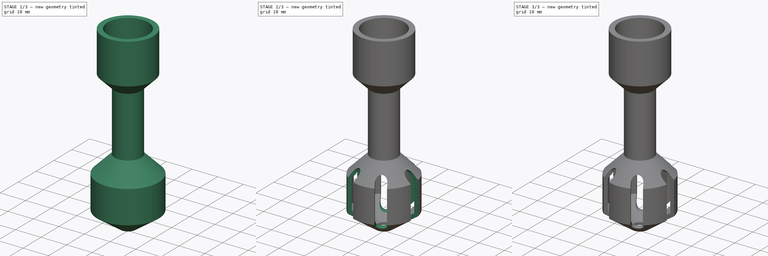
[diagram: build sequence overview — one tinted view per stage of 3, left to right]
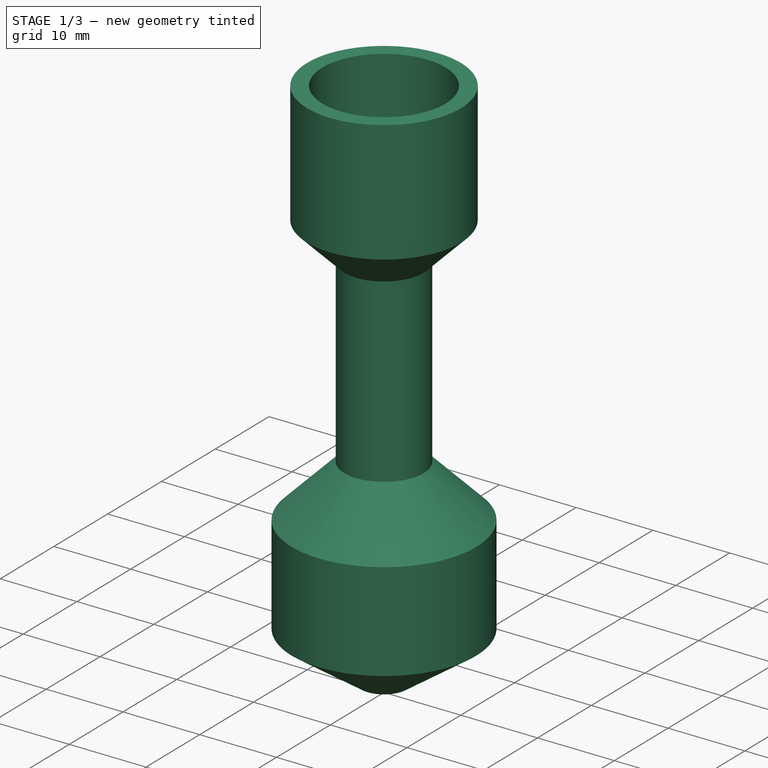
[diagram: stage 1 of 3 — iso view after this stage's code; geometry added in this stage tinted green]
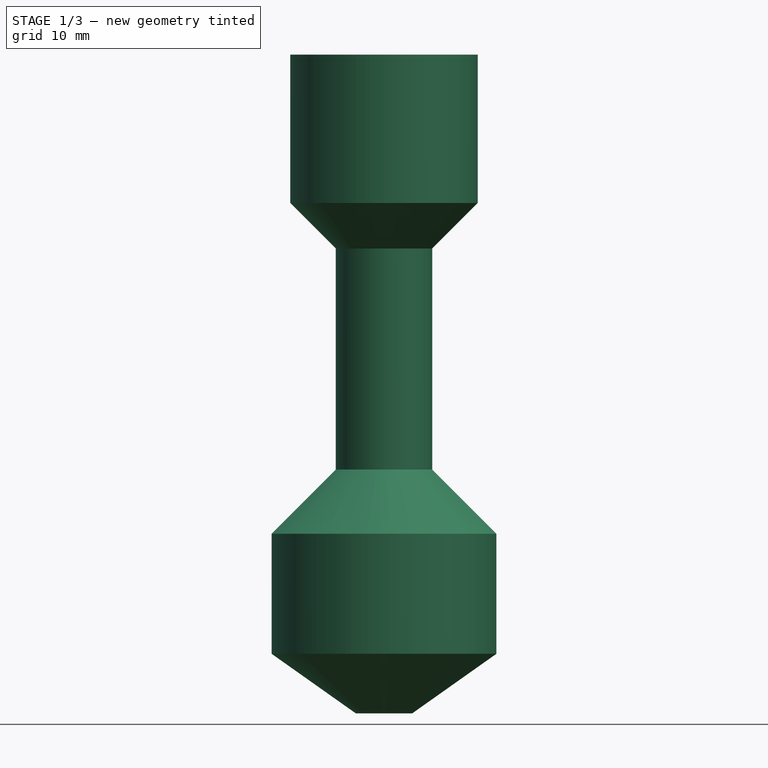
[diagram: stage 1 of 3 — front view after this stage's code; geometry added in this stage tinted green]
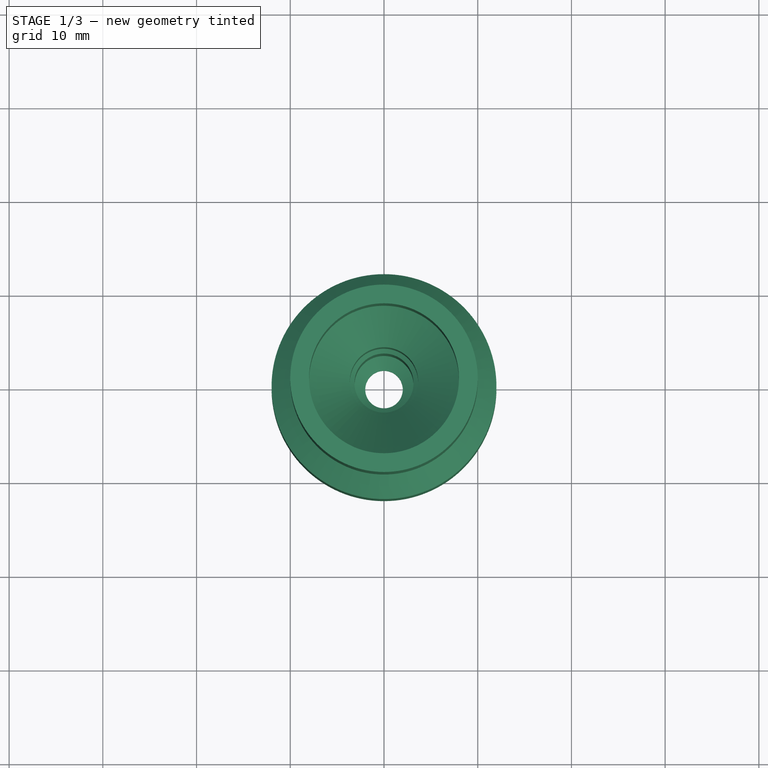
[diagram: stage 1 of 3 — top view after this stage's code; geometry added in this stage tinted green]
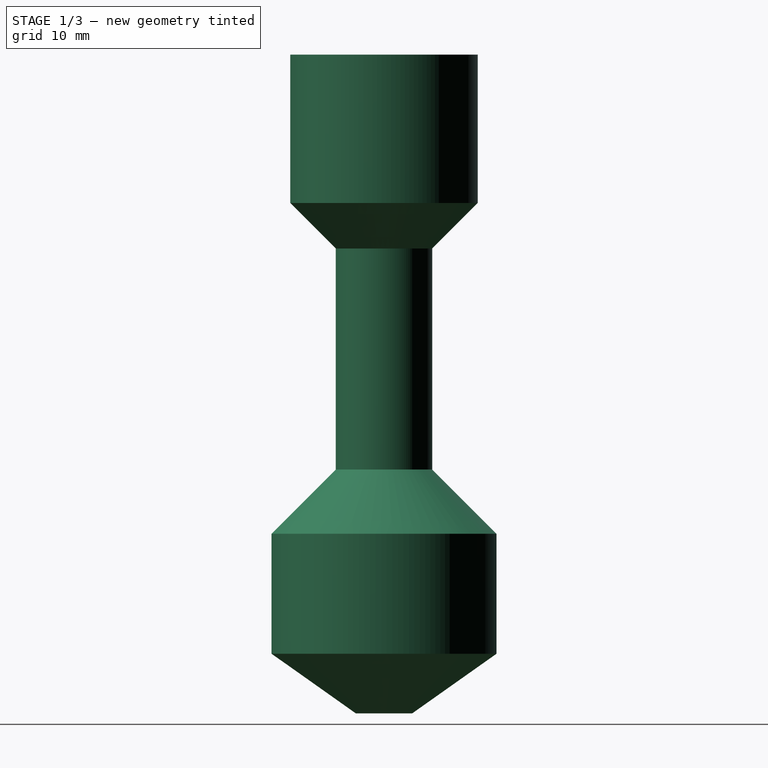
[diagram: stage 1 of 3 — right view after this stage's code; geometry added in this stage tinted green]
FCSTD DOCUMENT  (FreeCAD 1.1R44874 (Git))
Label: EN16_DS18N20_adapter
License: All rights reserved
LicenseURL: https://en.wikipedia.org/wiki/All_rights_reserved
objects: Sketcher::SketchObject×4, PartDesign::Revolution×2, PartDesign::Pocket×2, PartDesign::PolarPattern×2, App::Point×1, PartDesign::Body×1
note: 25 computed .brp shape members not serialized (recipe doc carries the construction recipe); baked Part::Feature solids carry a one-line shape summary decoded from their .brp

FEATURE [App::Point] Origin001
  Role = Origin
FEATURE [Sketcher::SketchObject] Sketch
  ArcFitTolerance = 1e-06
  AttachmentSupport = -> [Origin]
  ExternalTypes = [0]
  FullyConstrained = true
  MakeInternals = false
  MapMode = 5
  Placement = pos=(0,0,0) rot=(0.57735,0.57735,0.57735;2.0944rad)
  _ExternalGeoVersion = 1
  expr: Constraints[14] = 16 / 2
  expr: Constraints[16] = 7 / 2 + 0.15
  expr: Constraints[17] = 6 / 2 + 0.15
  expr: Constraints[18] = 90 + 45
  expr: Constraints[19] = 90 + 45
  expr: Constraints[41] = 6.5 / 2
  expr: Constraints[45] = 6 / 2
  sketch-geometry (16):
    g0: LineSegment StartX=8 StartY=29.2642 StartZ=0 EndX=8 EndY=44.2642 EndZ=0
    g1: LineSegment StartX=8 StartY=44.2642 StartZ=0 EndX=10 EndY=44.2642 EndZ=0
    g2: LineSegment StartX=10 StartY=44.2642 StartZ=0 EndX=10 EndY=28.4358 EndZ=0
    g3: LineSegment StartX=5.15 StartY=0 StartZ=0 EndX=3.15 EndY=0 EndZ=0
    g4: LineSegment StartX=3.15 StartY=0 StartZ=0 EndX=3.15 EndY=14.9 EndZ=0
    g5: LineSegment StartX=3.15 StartY=14.9 StartZ=0 EndX=3.65 EndY=15.4 EndZ=0
    g6: LineSegment StartX=3.65 StartY=15.4 StartZ=0 EndX=3.65 EndY=24.9142 EndZ=0
    g7: LineSegment StartX=3.65 StartY=24.9142 StartZ=0 EndX=8 EndY=29.2642 EndZ=0
    g8: LineSegment StartX=10 StartY=28.4358 StartZ=0 EndX=5.15 EndY=23.5858 EndZ=0
    g9: LineSegment StartX=5.15 StartY=23.5858 StartZ=0 EndX=5.15 EndY=0 EndZ=0
    g10: LineSegment [constr] StartX=5.15 StartY=23.5858 StartZ=0 EndX=3.73579 EndY=25 EndZ=0
    g11: LineSegment [constr] StartX=3 StartY=-20 StartZ=0 EndX=3 EndY=15 EndZ=0
    g12: LineSegment [constr] StartX=3 StartY=15 StartZ=0 EndX=3.25 EndY=15 EndZ=0
    g13: LineSegment [constr] StartX=3.25 StartY=15 StartZ=0 EndX=3.25 EndY=30 EndZ=0
    g14: LineSegment [constr] StartX=3.25 StartY=30 StartZ=0 EndX=0 EndY=30 EndZ=0
    g15: LineSegment [constr] StartX=3 StartY=-20 StartZ=0 EndX=0 EndY=-20 EndZ=0
  constraints (49):
    c: Vertical(g0)
    c: Coincident(g0,g1)
    c: Horizontal(g1)
    c: Coincident(g1,g2)
    c: PointOnObject(g9,g-1)
    c: Coincident(g9,g3)
    c: PointOnObject(g3,g-1)
    c: Coincident(g3,g4)
    c: Vertical(g4)
    c: Coincident(g4,g5)
    c: Coincident(g5,g6)
    c: Vertical(g6)
    c: Coincident(g7,g6)
    c: Coincident(g7,g0)
    c: DistanceX(g-1,g0) = 8
    c: DistanceX(g1,g1) = 2
    c: DistanceX(g-1,g5) = 3.65
    c: DistanceX(g-1,g3) = 3.15
    c: Angle(g4,g5) = 2.35619
    c: Angle(g6,g7) = 2.35619
    c: DistanceY(g0,g0) = 15
    c: Vertical(g2)
    c: Coincident(g2,g8)
    c: Vertical(g9)
    c: Coincident(g8,g9)
    c: Parallel(g7,g8)
    c: Coincident(g10,g8)
    c: PointOnObject(g10,g7)
    c: Perpendicular(g10,g7)
    c: Equal(g3,g1)
    c: Equal(g1,g10)
    c: Vertical(g11)
    c: Coincident(g11,g12)
    c: Coincident(g12,g13)
    c: Vertical(g13)
    c: Coincident(g13,g14)
    c: PointOnObject(g14,g-2)
    c: Horizontal(g14)
    c: DistanceY(g13,g13) = 15
    c: DistanceY(g11,g11) = 35
    c: Horizontal(g12)
    c: DistanceX(g-1,g12) = 3.25
    c: Coincident(g15,g11)
    c: PointOnObject(g15,g-2)
    c: Horizontal(g15)
    c: DistanceX(g-1,g11) = 3
    c: DistanceY(g15,g-1) = 20
    c: PointOnObject(g12,g5)
    c: DistanceY(g10,g13) = 5
FEATURE [PartDesign::Revolution] Revolution
  Angle = 360
  Angle2 = 0
  Axis = (0,0,1)
  Base = (0,0,0)
  FuseOrder = 0
  Profile = -> Sketch
  ReferenceAxis = -> Sketch [V_Axis]
  Refine = true
  Reversed = true
  Suppressed = false
  Type = 0
FEATURE [Sketcher::SketchObject] Sketch001
  ArcFitTolerance = 1e-06
  AttachmentSupport = -> [Origin]
  ExternalGeometry = -> [Revolution]
  ExternalTypes = [0,0]
  FullyConstrained = true
  MakeInternals = false
  MapMode = 5
  Placement = pos=(0,0,0) rot=(0.57735,0.57735,0.57735;2.0944rad)
  _ExternalGeoVersion = 1
  expr: Constraints[18] = 90 + 45
  sketch-geometry (12):
    g0: LineSegment StartX=5.15 StartY=0 StartZ=0 EndX=12 EndY=-6.85 EndZ=0
    g1: LineSegment StartX=12 StartY=-6.85 StartZ=0 EndX=12 EndY=-19.6603 EndZ=0
    g2: LineSegment StartX=12 StartY=-19.6603 StartZ=0 EndX=3.0146 EndY=-26.0146 EndZ=0
    g3: LineSegment StartX=3.0146 StartY=-26.0146 StartZ=0 EndX=2 EndY=-26.0146 EndZ=0
    g4: LineSegment StartX=2 StartY=-26.0146 StartZ=0 EndX=2 EndY=-25 EndZ=0
    g5: LineSegment StartX=2 StartY=-25 StartZ=0 EndX=10.5858 EndY=-18.9283 EndZ=0
    g6: LineSegment StartX=10.5858 StartY=-18.9283 StartZ=0 EndX=10.5858 EndY=-7.43579 EndZ=0
    g7: LineSegment StartX=10.5858 StartY=-7.43579 StartZ=0 EndX=3.15 EndY=0 EndZ=0
    g8: LineSegment StartX=3.15 StartY=0 StartZ=0 EndX=5.15 EndY=0 EndZ=0
    g9: LineSegment [constr] StartX=10.5858 StartY=-7.43579 StartZ=0 EndX=11.5858 EndY=-6.43579 EndZ=0
    g10: LineSegment [constr] StartX=10.5858 StartY=-18.9283 StartZ=0 EndX=11.4023 EndY=-20.0829 EndZ=0
    g11: LineSegment [constr] StartX=12 StartY=-19.6603 StartZ=0 EndX=10.5858 EndY=-19.6603 EndZ=0
  constraints (34):
    c: Coincident(g0,g1)
    c: Vertical(g1)
    c: Coincident(g1,g2)
    c: Coincident(g2,g3)
    c: Horizontal(g3)
    c: Coincident(g3,g4)
    c: Coincident(g5,g6)
    c: Coincident(g6,g7)
    c: Coincident(g7,g-3)
    c: Coincident(g7,g8)
    c: Coincident(g8,g-4)
    c: Vertical(g6)
    c: Coincident(g0,g8)
    c: Coincident(g4,g5)
    c: Vertical(g4)
    c: DistanceY(g4,g7) = 25
    c: Parallel(g0,g7)
    c: Parallel(g5,g2)
    c: Angle(g-1,g0) = 2.35619
    c: PointOnObject(g9,g0)
    c: PointOnObject(g10,g2)
    c: Coincident(g10,g5)
    c: Perpendicular(g5,g10)
    c: Perpendicular(g0,g9)
    c: Coincident(g9,g6)
    c: Equal(g9,g10)
    c: Coincident(g11,g1)
    c: PointOnObject(g11,g6)
    c: Horizontal(g11)
    c: Equal(g11,g9)
    c: DistanceX(g-1,g4) = 2
    c: Equal(g7,g5)
    c: DistanceX(g-1,g0) = 12
    c: Equal(g3,g4)
FEATURE [PartDesign::Revolution] Revolution001
  Angle = 360
  Angle2 = 0
  Axis = (0,0,1)
  Base = (0,0,0)
  BaseFeature = -> Revolution
  FuseOrder = 0
  Profile = -> Sketch001
  ReferenceAxis = -> Sketch001 [V_Axis]
  Refine = true
  Reversed = true
  Suppressed = false
  Type = 0
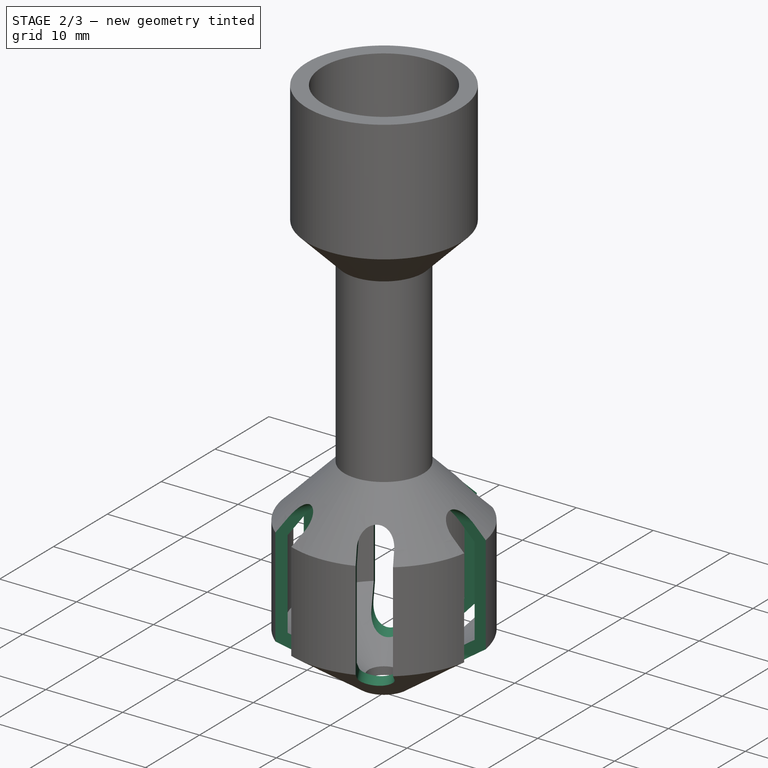
[diagram: stage 2 of 3 — iso view after this stage's code; geometry added in this stage tinted green]
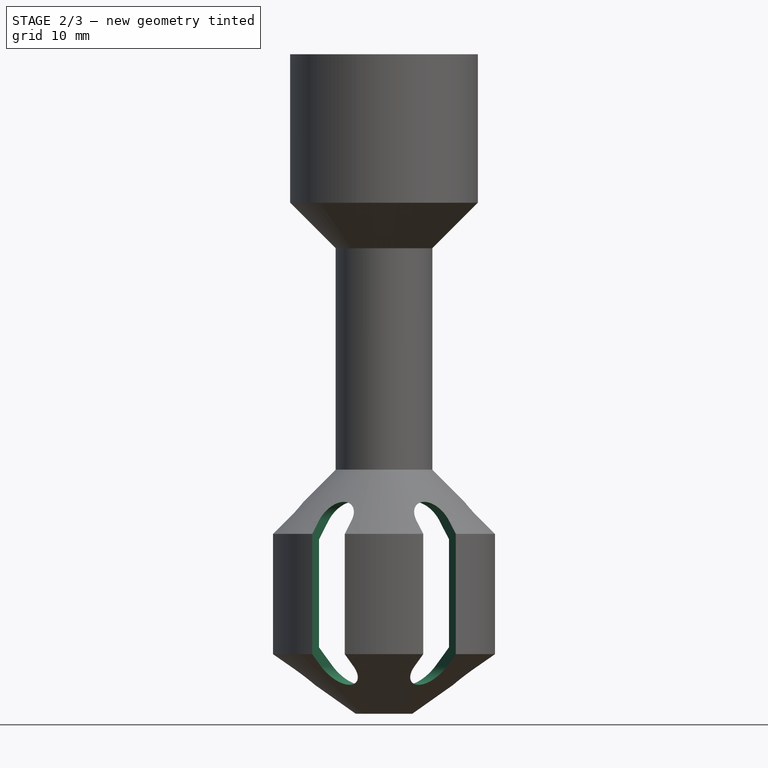
[diagram: stage 2 of 3 — front view after this stage's code; geometry added in this stage tinted green]
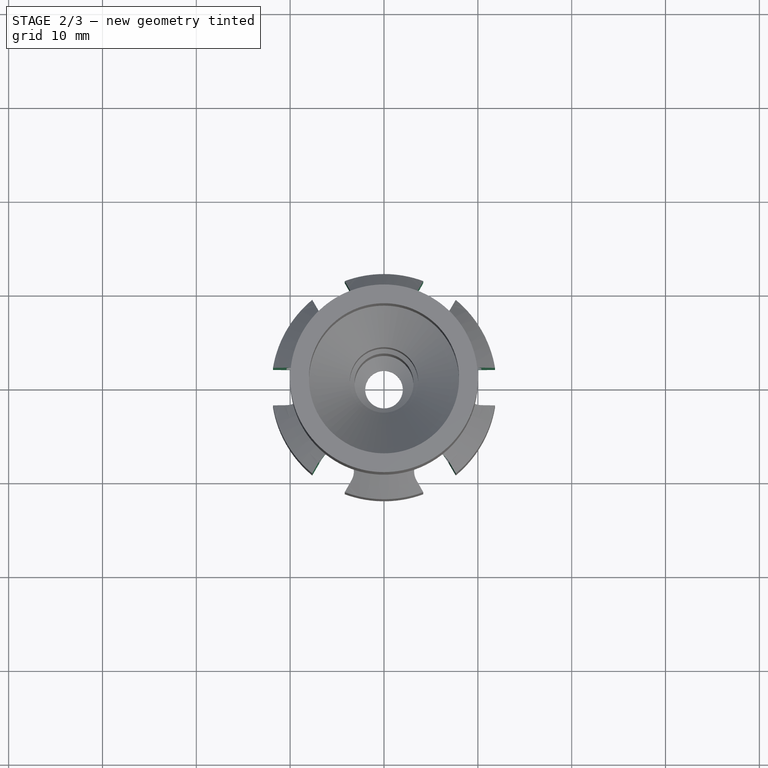
[diagram: stage 2 of 3 — top view after this stage's code; geometry added in this stage tinted green]
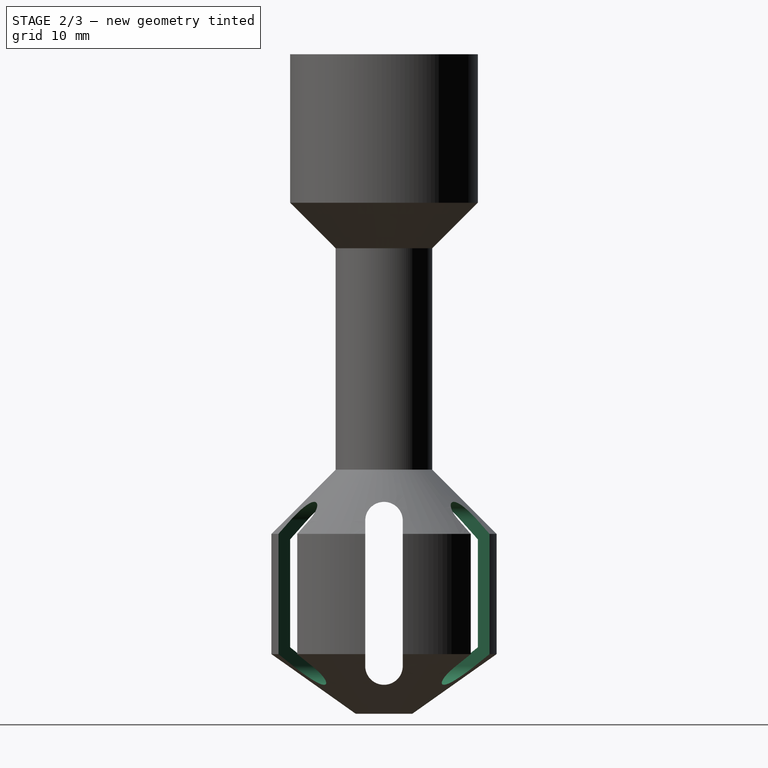
[diagram: stage 2 of 3 — right view after this stage's code; geometry added in this stage tinted green]
FEATURE [Sketcher::SketchObject] Sketch002
  ArcFitTolerance = 1e-06
  AttachmentSupport = -> [Origin]
  ExternalGeometry = -> [Revolution001]
  ExternalTypes = [0,0]
  FullyConstrained = true
  MakeInternals = false
  MapMode = 5
  Placement = pos=(0,0,0) rot=(0.57735,0.57735,0.57735;2.0944rad)
  _ExternalGeoVersion = 1
  sketch-geometry (6):
    g0: ArcOfCircle CenterX=0 CenterY=-5.43579 CenterZ=0 NormalX=0 NormalY=0 NormalZ=1 AngleXU=0 Radius=2 StartAngle=1.903e-13 EndAngle=3.14159
    g1: ArcOfCircle CenterX=0 CenterY=-20.9283 CenterZ=0 NormalX=0 NormalY=0 NormalZ=1 AngleXU=0 Radius=2 StartAngle=3.14159 EndAngle=6.28319
    g2: LineSegment StartX=2 StartY=-5.43579 StartZ=0 EndX=2 EndY=-20.9283 EndZ=0
    g3: LineSegment StartX=-2 StartY=-5.43579 StartZ=0 EndX=-2 EndY=-20.9283 EndZ=0
    g4: LineSegment [constr] StartX=0 StartY=-5.43579 StartZ=0 EndX=0 EndY=-7.43579 EndZ=0
    g5: LineSegment [constr] StartX=0 StartY=-20.9283 StartZ=0 EndX=0 EndY=-18.9283 EndZ=0
  constraints (16):
    c: Tangent(g0,g2) = 1.5708
    c: Tangent(g0,g3) = -1.5708
    c: Tangent(g1,g2) = 1.5708
    c: Tangent(g1,g3) = -1.5708
    c: Equal(g0,g1)
    c: PointOnObject(g0,g-2)
    c: PointOnObject(g1,g-2)
    c: DistanceX(g1,g1) = 4
    c: Coincident(g4,g0)
    c: PointOnObject(g4,g-3)
    c: Coincident(g5,g1)
    c: PointOnObject(g5,g-4)
    c: Vertical(g4)
    c: Vertical(g5)
    c: Equal(g5,g4)
    c: DistanceY(g4,g4) = 2
FEATURE [PartDesign::Pocket] Pocket
  BaseFeature = -> Revolution001
  Direction = (-1,0,0)
  Length = 5
  Length2 = 5
  Profile = -> Sketch002
  ReferenceAxis = -> Sketch002 [N_Axis]
  Refine = true
  Reversed = true
  SideType = 0
  Suppressed = false
  Type = 1
  Type2 = 0
FEATURE [PartDesign::PolarPattern] PolarPattern
  Angle = 360
  Axis = -> Sketch002 [V_Axis]
  BaseFeature = -> Pocket
  Mode = 0
  Occurrences = 6
  Offset = 120
  Originals = -> [Pocket]
  Refine = true
  SpacingPattern = [0]
  Spacings = [-1,-1,-1,-1,-1]
  Suppressed = false
  TransformMode = 0
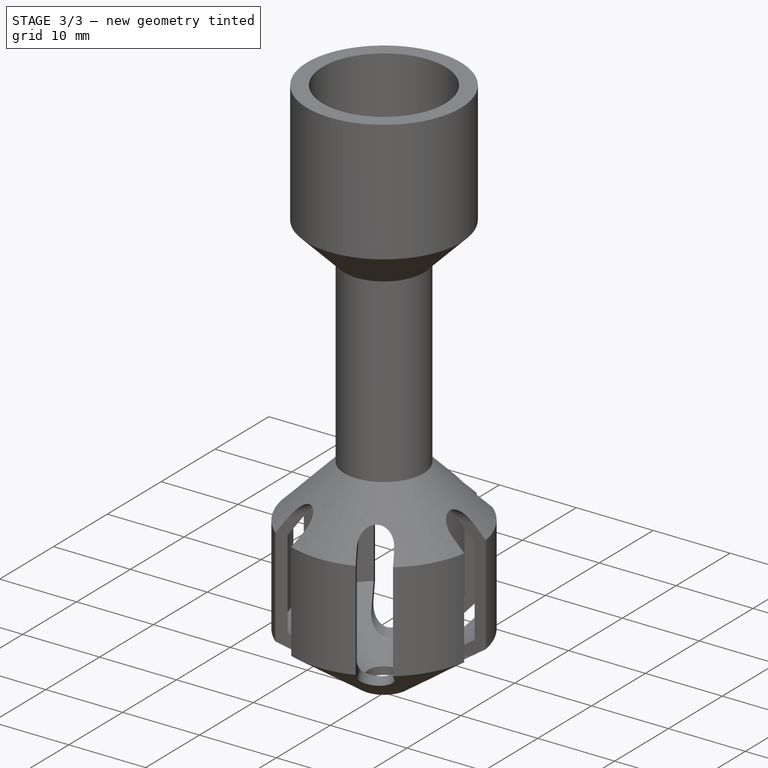
[diagram: stage 3 of 3 — iso view after this stage's code; geometry added in this stage tinted green]
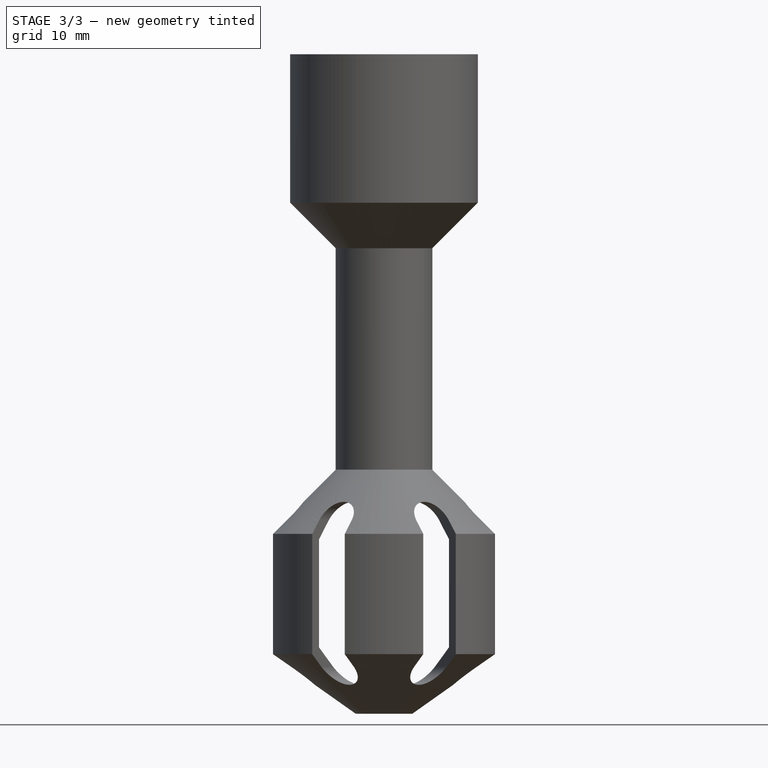
[diagram: stage 3 of 3 — front view after this stage's code; geometry added in this stage tinted green]
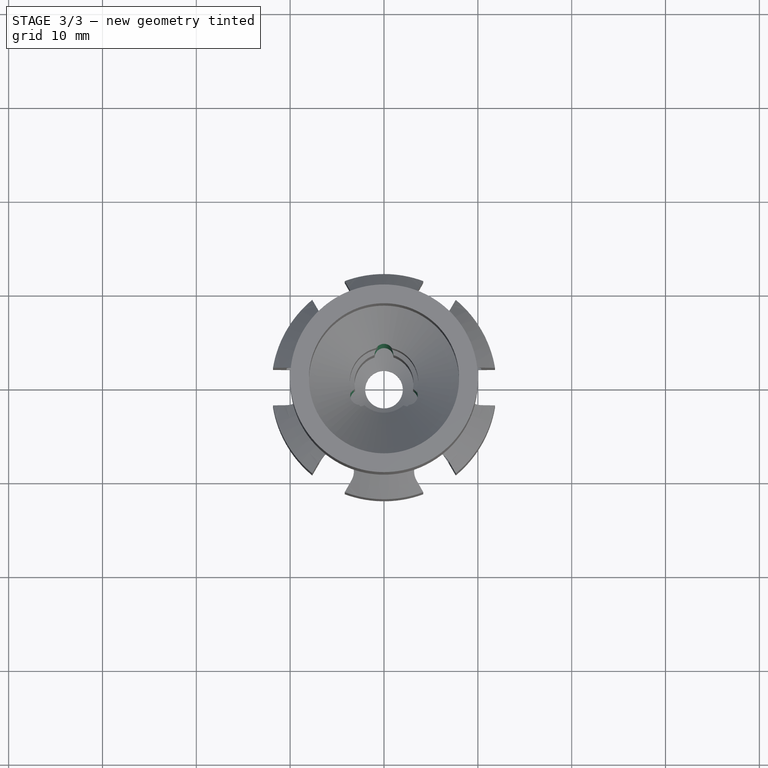
[diagram: stage 3 of 3 — top view after this stage's code; geometry added in this stage tinted green]
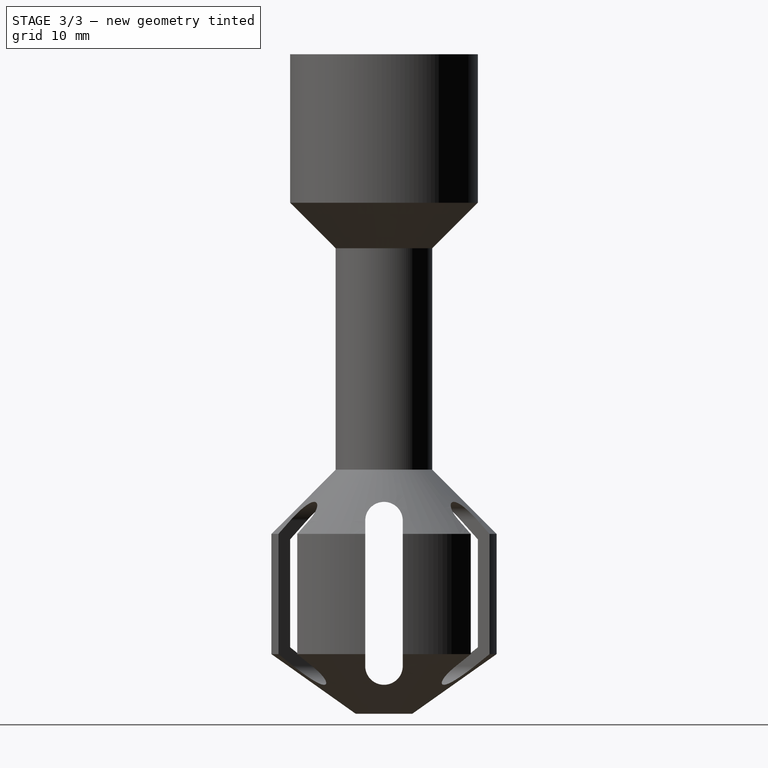
[diagram: stage 3 of 3 — right view after this stage's code; geometry added in this stage tinted green]
FEATURE [Sketcher::SketchObject] Sketch003
  ArcFitTolerance = 1e-06
  AttachmentSupport = -> [Origin]
  ExternalTypes = [0]
  FullyConstrained = true
  MakeInternals = false
  MapMode = 5
  _ExternalGeoVersion = 1
  expr: Constraints[2] = 6 / 2
  sketch-geometry (1):
    g0: Circle CenterX=0 CenterY=3 CenterZ=0 NormalX=0 NormalY=0 NormalZ=1 AngleXU=0 Radius=1
  constraints (3):
    c: Diameter(g0) = 2
    c: PointOnObject(g0,g-2)
    c: DistanceY(g-1,g0) = 3
FEATURE [PartDesign::Pocket] Pocket001
  BaseFeature = -> PolarPattern
  Direction = (0,0,-1)
  Length = 5
  Length2 = 5
  Profile = -> Sketch003
  ReferenceAxis = -> Sketch003 [N_Axis]
  Refine = true
  Reversed = true
  SideType = 1
  Suppressed = false
  Type = 1
  Type2 = 0
FEATURE [PartDesign::PolarPattern] PolarPattern001
  Angle = 360
  Axis = -> Sketch003 [N_Axis]
  BaseFeature = -> Pocket001
  Mode = 0
  Occurrences = 3
  Offset = 120
  Originals = -> [Pocket001]
  Refine = true
  SpacingPattern = [0]
  Spacings = [-1,-1]
  Suppressed = false
  TransformMode = 0
FEATURE [PartDesign::Body] Body
  AllowCompound = true
  Group = -> [Sketch,Revolution,Sketch001,Revolution001,Sketch002,Pocket,PolarPattern,Sketch003,Pocket001,PolarPattern001]
  Origin = -> Origin
  Tip = -> PolarPattern001
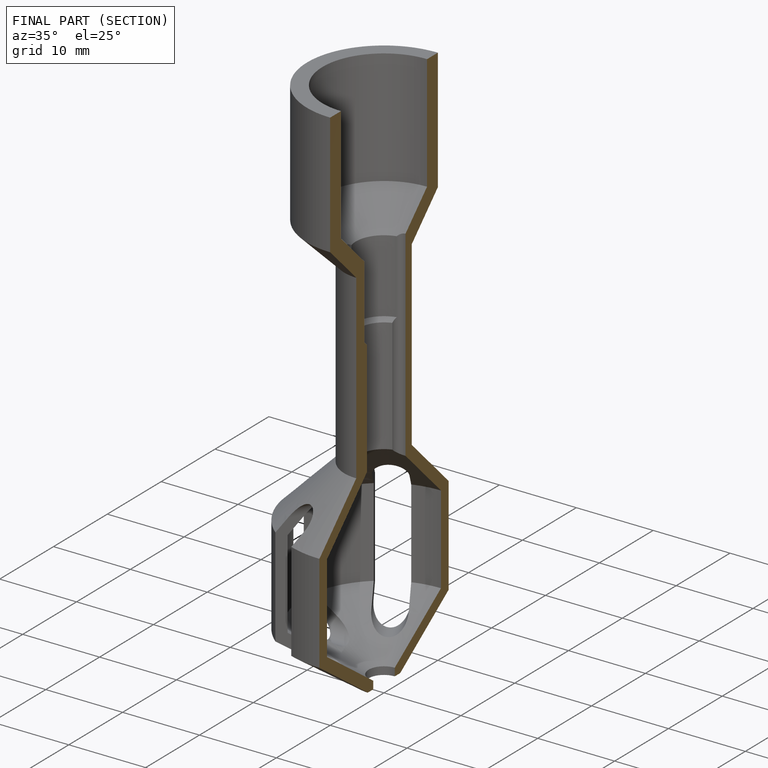
[diagram: finished part — half-section view (interior)]
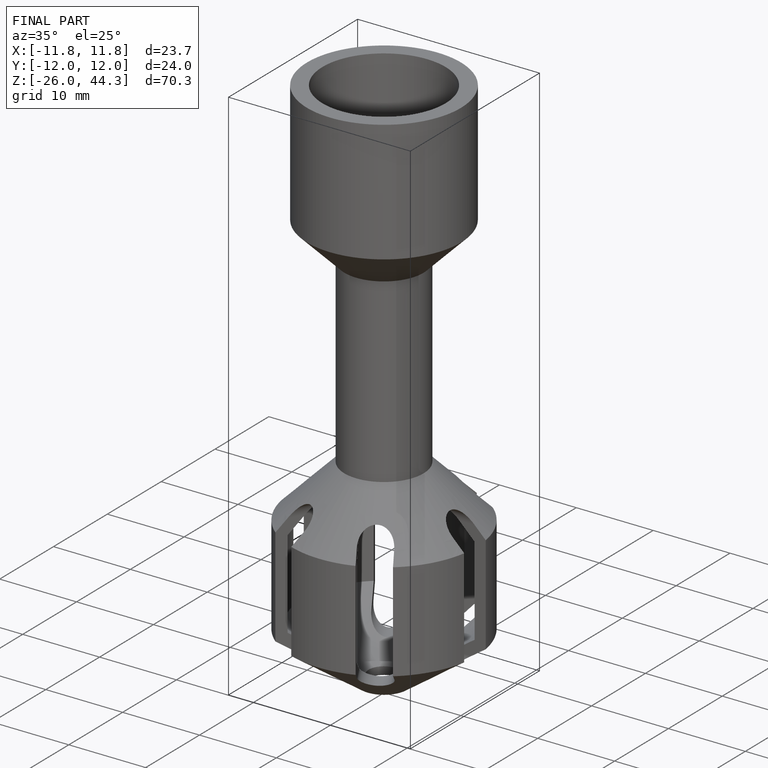
[diagram: finished part — iso view with bounding-box wireframe]
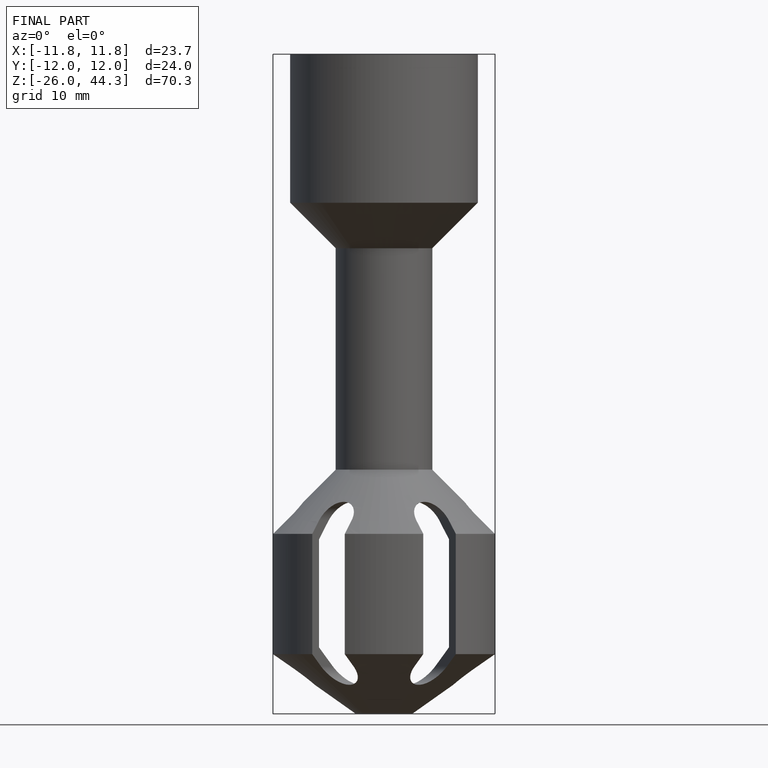
[diagram: finished part — front view with bounding-box wireframe]
